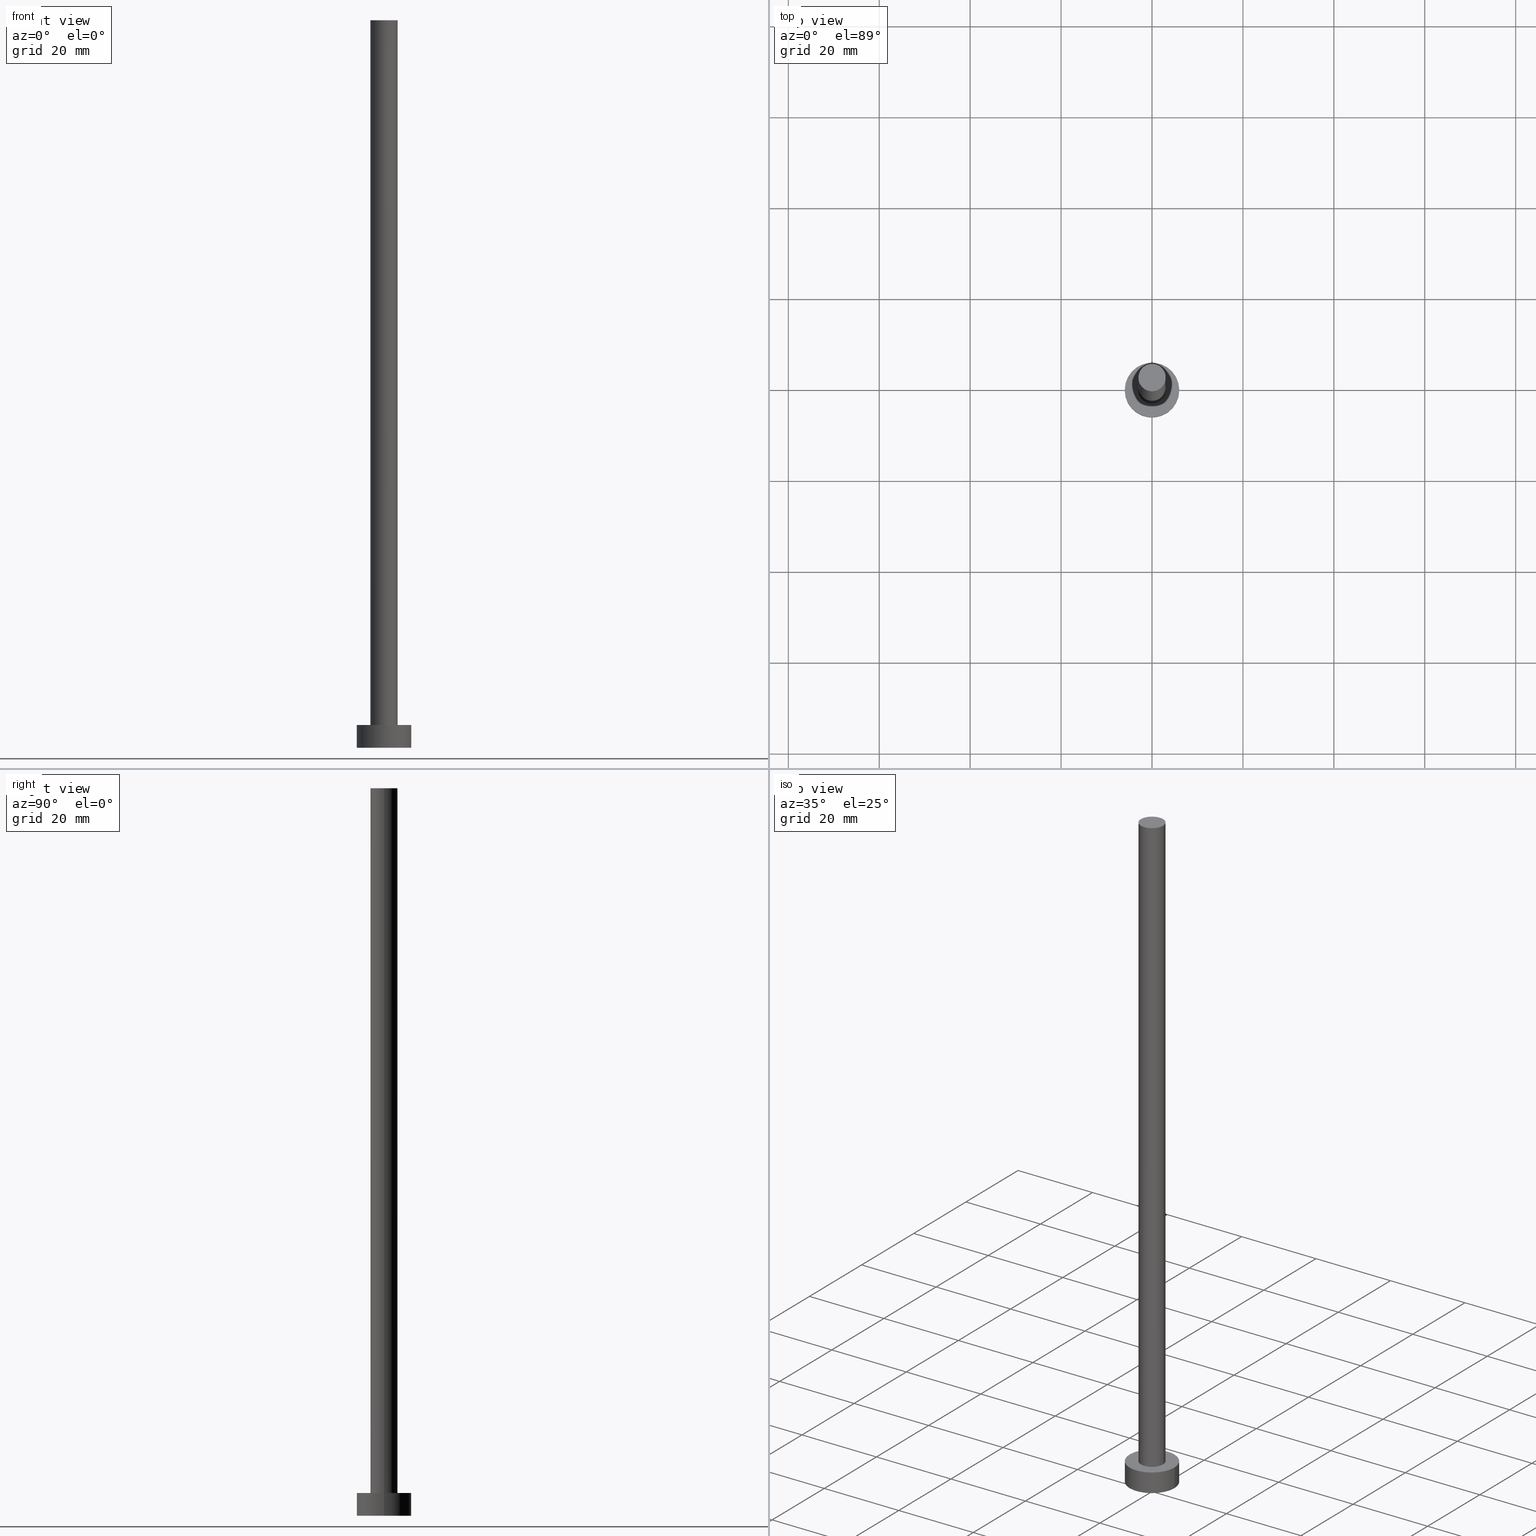
[diagram: canonical four-view strip — front | top / right | iso, engineering-drawing reading convention]
A machine part, canonical four-view strip (front | top / right | iso — engineering-drawing reading convention). The complete STEP part file that produces these views, byte-faithful:
ISO-10303-21;
HEADER;
FILE_DESCRIPTION (( 'STEP AP203' ),
    '1' );
FILE_NAME ('ced7.STEP',
    '2023-02-13T15:22:30',
    ( '' ),
    ( '' ),
    'SwSTEP 2.0',
    'SolidWorks 2019',
    '' );
FILE_SCHEMA (( 'CONFIG_CONTROL_DESIGN' ));
ENDSEC;

DATA;
#1 = ORIENTED_EDGE ( 'NONE', *, *, #205, .F. ) ;
#2 = EDGE_LOOP ( 'NONE', ( #146, #197, #84, #180 ) ) ;
#3 = AXIS2_PLACEMENT_3D ( 'NONE', #59, #112, #141 ) ;
#4 = PRODUCT_DEFINITION_SHAPE ( 'NONE', 'NONE',  #41 ) ;
#5 = FACE_OUTER_BOUND ( 'NONE', #165, .T. ) ;
#6 = DIRECTION ( 'NONE',  ( 0.000000000000000000, 0.000000000000000000, 1.000000000000000000 ) ) ;
#7 = APPLICATION_PROTOCOL_DEFINITION ( 'international standard', 'config_control_design', 1994, #220 ) ;
#8 = ADVANCED_FACE ( 'NONE', ( #27 ), #229, .F. ) ;
#9 = CARTESIAN_POINT ( 'NONE',  ( 3.000000000000000444, 3.673940397442060361E-16, 160.0000000000000000 ) ) ;
#10 = CARTESIAN_POINT ( 'NONE',  ( -3.000000000000000444, 0.000000000000000000, 160.0000000000000000 ) ) ;
#11 = DIRECTION ( 'NONE',  ( -1.000000000000000000, 0.000000000000000000, 0.000000000000000000 ) ) ;
#12 = DIRECTION ( 'NONE',  ( 1.000000000000000000, 0.000000000000000000, 0.000000000000000000 ) ) ;
#13 = ORIENTED_EDGE ( 'NONE', *, *, #247, .T. ) ;
#14 = VECTOR ( 'NONE', #98, 1000.000000000000000 ) ;
#15 = ORIENTED_EDGE ( 'NONE', *, *, #138, .F. ) ;
#16 = CALENDAR_DATE ( 2023, 13, 2 ) ;
#17 = EDGE_LOOP ( 'NONE', ( #1, #62, #38, #177 ) ) ;
#18 = APPROVAL_PERSON_ORGANIZATION ( #86, #118, #239 ) ;
#19 = EDGE_CURVE ( 'NONE', #255, #88, #233, .T. ) ;
#20 = APPROVAL_ROLE ( '' ) ;
#21 = APPROVAL_DATE_TIME ( #202, #182 ) ;
#22 = VERTEX_POINT ( 'NONE', #213 ) ;
#23 = APPROVAL_DATE_TIME ( #69, #118 ) ;
#24 = AXIS2_PLACEMENT_3D ( 'NONE', #175, #179, #113 ) ;
#25 = APPROVAL_PERSON_ORGANIZATION ( #246, #182, #150 ) ;
#26 = DIRECTION ( 'NONE',  ( 0.000000000000000000, 0.000000000000000000, 1.000000000000000000 ) ) ;
#27 = FACE_OUTER_BOUND ( 'NONE', #147, .T. ) ;
#28 = CYLINDRICAL_SURFACE ( 'NONE', #85, 3.000000000000000444 ) ;
#29 =( NAMED_UNIT ( * ) PLANE_ANGLE_UNIT ( ) SI_UNIT ( $, .RADIAN. ) );
#30 = DIRECTION ( 'NONE',  ( 1.000000000000000000, 0.000000000000000000, 0.000000000000000000 ) ) ;
#31 = VECTOR ( 'NONE', #95, 1000.000000000000000 ) ;
#32 = DIRECTION ( 'NONE',  ( 0.000000000000000000, 0.000000000000000000, 1.000000000000000000 ) ) ;
#33 = FACE_OUTER_BOUND ( 'NONE', #17, .T. ) ;
#34 = CARTESIAN_POINT ( 'NONE',  ( -3.000000000000000444, 0.000000000000000000, 160.0000000000000000 ) ) ;
#35 = CC_DESIGN_PERSON_AND_ORGANIZATION_ASSIGNMENT ( #196, #108, ( #47 ) ) ;
#36 = CARTESIAN_POINT ( 'NONE',  ( 3.000000000000000444, 3.673940397442060361E-16, 5.000000000000000000 ) ) ;
#37 = PERSON_AND_ORGANIZATION_ROLE ( 'creator' ) ;
#38 = ORIENTED_EDGE ( 'NONE', *, *, #92, .T. ) ;
#39 = COORDINATED_UNIVERSAL_TIME_OFFSET ( 1, 0, .AHEAD. ) ;
#40 = ORIENTED_EDGE ( 'NONE', *, *, #110, .F. ) ;
#41 = PRODUCT_DEFINITION ( 'NEZN�M�', '', #47, #70 ) ;
#42 = DATE_TIME_ROLE ( 'creation_date' ) ;
#43 = VERTEX_POINT ( 'NONE', #140 ) ;
#44 = PRODUCT_RELATED_PRODUCT_CATEGORY ( 'detail', '', ( #133 ) ) ;
#45 = LOCAL_TIME ( 16, 22, 30.00000000000000000, #39 ) ;
#46 = EDGE_CURVE ( 'NONE', #22, #234, #211, .T. ) ;
#47 = PRODUCT_DEFINITION_FORMATION_WITH_SPECIFIED_SOURCE ( 'LIBOVOLN�', '', #133, .NOT_KNOWN. ) ;
#48 = CYLINDRICAL_SURFACE ( 'NONE', #178, 3.000000000000000444 ) ;
#49 = AXIS2_PLACEMENT_3D ( 'NONE', #119, #253, #12 ) ;
#50 =( GEOMETRIC_REPRESENTATION_CONTEXT ( 3 ) GLOBAL_UNCERTAINTY_ASSIGNED_CONTEXT ( ( #242 ) ) GLOBAL_UNIT_ASSIGNED_CONTEXT ( ( #117, #29, #54 ) ) REPRESENTATION_CONTEXT ( 'NONE', 'WORKASPACE' ) );
#51 = DIRECTION ( 'NONE',  ( 0.000000000000000000, 0.000000000000000000, 1.000000000000000000 ) ) ;
#52 = CARTESIAN_POINT ( 'NONE',  ( 0.000000000000000000, 0.000000000000000000, 0.000000000000000000 ) ) ;
#53 = DIRECTION ( 'NONE',  ( 0.000000000000000000, 0.000000000000000000, 1.000000000000000000 ) ) ;
#54 =( NAMED_UNIT ( * ) SI_UNIT ( $, .STERADIAN. ) SOLID_ANGLE_UNIT ( ) );
#55 = DIRECTION ( 'NONE',  ( 1.000000000000000000, 0.000000000000000000, 0.000000000000000000 ) ) ;
#56 = APPLICATION_PROTOCOL_DEFINITION ( 'international standard', 'config_control_design', 1994, #149 ) ;
#57 = CC_DESIGN_PERSON_AND_ORGANIZATION_ASSIGNMENT ( #217, #37, ( #47 ) ) ;
#58 = DIRECTION ( 'NONE',  ( 1.000000000000000000, 0.000000000000000000, 0.000000000000000000 ) ) ;
#59 = CARTESIAN_POINT ( 'NONE',  ( 0.000000000000000000, 0.000000000000000000, 5.000000000000000000 ) ) ;
#60 = PERSON_AND_ORGANIZATION ( #115, #238 ) ;
#61 = EDGE_LOOP ( 'NONE', ( #161, #13, #66, #40 ) ) ;
#62 = ORIENTED_EDGE ( 'NONE', *, *, #19, .T. ) ;
#63 = CIRCLE ( 'NONE', #206, 6.000000000000000888 ) ;
#64 = VERTEX_POINT ( 'NONE', #10 ) ;
#65 = SECURITY_CLASSIFICATION_LEVEL ( 'unclassified' ) ;
#66 = ORIENTED_EDGE ( 'NONE', *, *, #71, .T. ) ;
#67 = AXIS2_PLACEMENT_3D ( 'NONE', #131, #51, #132 ) ;
#68 = CALENDAR_DATE ( 2023, 13, 2 ) ;
#69 = DATE_AND_TIME ( #68, #240 ) ;
#70 = DESIGN_CONTEXT ( 'detailed design', #220, 'design' ) ;
#71 = EDGE_CURVE ( 'NONE', #87, #43, #89, .T. ) ;
#72 = CIRCLE ( 'NONE', #244, 6.000000000000000888 ) ;
#73 = APPROVAL ( #218, 'NEUR�EN�' ) ;
#74 = DIRECTION ( 'NONE',  ( 1.000000000000000000, 0.000000000000000000, 0.000000000000000000 ) ) ;
#75 = CLOSED_SHELL ( 'NONE', ( #201, #187, #109, #169, #8, #163, #230 ) ) ;
#76 = APPROVAL_STATUS ( 'not_yet_approved' ) ;
#77 = DIRECTION ( 'NONE',  ( -0.000000000000000000, -0.000000000000000000, -1.000000000000000000 ) ) ;
#78 = LINE ( 'NONE', #34, #122 ) ;
#79 = CARTESIAN_POINT ( 'NONE',  ( 0.000000000000000000, 0.000000000000000000, 160.0000000000000000 ) ) ;
#80 = CARTESIAN_POINT ( 'NONE',  ( 0.000000000000000000, 0.000000000000000000, 0.000000000000000000 ) ) ;
#81 = DIRECTION ( 'NONE',  ( 1.000000000000000000, 0.000000000000000000, 0.000000000000000000 ) ) ;
#82 = PERSON_AND_ORGANIZATION_ROLE ( 'classification_officer' ) ;
#83 = PERSON_AND_ORGANIZATION ( #115, #238 ) ;
#84 = ORIENTED_EDGE ( 'NONE', *, *, #110, .T. ) ;
#85 = AXIS2_PLACEMENT_3D ( 'NONE', #153, #208, #11 ) ;
#86 = PERSON_AND_ORGANIZATION ( #115, #238 ) ;
#87 = VERTEX_POINT ( 'NONE', #36 ) ;
#88 = VERTEX_POINT ( 'NONE', #226 ) ;
#89 = CIRCLE ( 'NONE', #154, 3.000000000000000444 ) ;
#90 = SHAPE_DEFINITION_REPRESENTATION ( #4, #228 ) ;
#91 = CC_DESIGN_PERSON_AND_ORGANIZATION_ASSIGNMENT ( #60, #102, ( #41 ) ) ;
#92 = EDGE_CURVE ( 'NONE', #88, #234, #111, .T. ) ;
#93 = CARTESIAN_POINT ( 'NONE',  ( 0.000000000000000000, 0.000000000000000000, 0.000000000000000000 ) ) ;
#94 = CARTESIAN_POINT ( 'NONE',  ( 3.000000000000000444, 3.673940397442060361E-16, 160.0000000000000000 ) ) ;
#95 = DIRECTION ( 'NONE',  ( -0.000000000000000000, -0.000000000000000000, -1.000000000000000000 ) ) ;
#96 = PERSON_AND_ORGANIZATION ( #115, #238 ) ;
#97 = DIRECTION ( 'NONE',  ( -0.000000000000000000, -0.000000000000000000, -1.000000000000000000 ) ) ;
#98 = DIRECTION ( 'NONE',  ( -0.000000000000000000, -0.000000000000000000, -1.000000000000000000 ) ) ;
#99 = CARTESIAN_POINT ( 'NONE',  ( 0.000000000000000000, 0.000000000000000000, 5.000000000000000000 ) ) ;
#100 = CARTESIAN_POINT ( 'NONE',  ( 0.000000000000000000, 0.000000000000000000, 160.0000000000000000 ) ) ;
#101 = AXIS2_PLACEMENT_3D ( 'NONE', #79, #26, #74 ) ;
#102 = PERSON_AND_ORGANIZATION_ROLE ( 'creator' ) ;
#103 = CARTESIAN_POINT ( 'NONE',  ( 6.000000000000000888, 7.347880794884120722E-16, 5.000000000000000000 ) ) ;
#104 = ORIENTED_EDGE ( 'NONE', *, *, #138, .T. ) ;
#105 = DATE_AND_TIME ( #16, #148 ) ;
#106 = EDGE_LOOP ( 'NONE', ( #124, #142 ) ) ;
#107 = LOCAL_TIME ( 16, 22, 30.00000000000000000, #129 ) ;
#108 = PERSON_AND_ORGANIZATION_ROLE ( 'design_supplier' ) ;
#109 = ADVANCED_FACE ( 'NONE', ( #173 ), #192, .T. ) ;
#110 = EDGE_CURVE ( 'NONE', #64, #43, #78, .T. ) ;
#111 = CIRCLE ( 'NONE', #214, 6.000000000000000888 ) ;
#112 = DIRECTION ( 'NONE',  ( -0.000000000000000000, -0.000000000000000000, -1.000000000000000000 ) ) ;
#113 = DIRECTION ( 'NONE',  ( -1.000000000000000000, 0.000000000000000000, 0.000000000000000000 ) ) ;
#114 = FACE_OUTER_BOUND ( 'NONE', #106, .T. ) ;
#115 = PERSON ( 'NEUR�EN�', 'NEUR�EN�', 'NEUR�EN�', ('NEUR�EN�'), ('NEUR�EN�'), ('NEUR�EN�') ) ;
#116 = CARTESIAN_POINT ( 'NONE',  ( -6.000000000000000888, 0.000000000000000000, 0.000000000000000000 ) ) ;
#117 =( LENGTH_UNIT ( ) NAMED_UNIT ( * ) SI_UNIT ( .MILLI., .METRE. ) );
#118 = APPROVAL ( #164, 'NEUR�EN�' ) ;
#119 = CARTESIAN_POINT ( 'NONE',  ( 0.000000000000000000, 0.000000000000000000, 5.000000000000000000 ) ) ;
#120 = DIRECTION ( 'NONE',  ( 1.000000000000000000, 0.000000000000000000, -0.000000000000000000 ) ) ;
#121 = EDGE_CURVE ( 'NONE', #43, #87, #157, .T. ) ;
#122 = VECTOR ( 'NONE', #248, 1000.000000000000000 ) ;
#123 = CALENDAR_DATE ( 2023, 13, 2 ) ;
#124 = ORIENTED_EDGE ( 'NONE', *, *, #137, .T. ) ;
#125 = CALENDAR_DATE ( 2023, 13, 2 ) ;
#126 = ORIENTED_EDGE ( 'NONE', *, *, #92, .F. ) ;
#127 = CC_DESIGN_APPROVAL ( #182, ( #41 ) ) ;
#128 = COORDINATED_UNIVERSAL_TIME_OFFSET ( 1, 0, .AHEAD. ) ;
#129 = COORDINATED_UNIVERSAL_TIME_OFFSET ( 1, 0, .AHEAD. ) ;
#130 = MANIFOLD_SOLID_BREP ( 'P�idat vysunut�m3', #75 ) ;
#131 = CARTESIAN_POINT ( 'NONE',  ( 0.000000000000000000, 0.000000000000000000, 5.000000000000000000 ) ) ;
#132 = DIRECTION ( 'NONE',  ( 1.000000000000000000, 0.000000000000000000, 0.000000000000000000 ) ) ;
#133 = PRODUCT ( 'ced7', 'ced7', '', ( #190 ) ) ;
#134 = CC_DESIGN_PERSON_AND_ORGANIZATION_ASSIGNMENT ( #83, #82, ( #250 ) ) ;
#135 = PERSON_AND_ORGANIZATION_ROLE ( 'design_owner' ) ;
#136 = DIRECTION ( 'NONE',  ( -1.000000000000000000, 0.000000000000000000, 0.000000000000000000 ) ) ;
#137 = EDGE_CURVE ( 'NONE', #64, #162, #241, .T. ) ;
#138 = EDGE_CURVE ( 'NONE', #234, #88, #63, .T. ) ;
#139 = FACE_BOUND ( 'NONE', #219, .T. ) ;
#140 = CARTESIAN_POINT ( 'NONE',  ( -3.000000000000000444, 0.000000000000000000, 5.000000000000000000 ) ) ;
#141 = DIRECTION ( 'NONE',  ( -1.000000000000000000, 0.000000000000000000, 0.000000000000000000 ) ) ;
#142 = ORIENTED_EDGE ( 'NONE', *, *, #186, .T. ) ;
#143 = COORDINATED_UNIVERSAL_TIME_OFFSET ( 1, 0, .AHEAD. ) ;
#144 = ORIENTED_EDGE ( 'NONE', *, *, #19, .F. ) ;
#145 = CIRCLE ( 'NONE', #67, 6.000000000000000888 ) ;
#146 = ORIENTED_EDGE ( 'NONE', *, *, #247, .F. ) ;
#147 = EDGE_LOOP ( 'NONE', ( #15, #126 ) ) ;
#148 = LOCAL_TIME ( 16, 22, 30.00000000000000000, #183 ) ;
#149 = APPLICATION_CONTEXT ( 'configuration controlled 3d designs of mechanical parts and assemblies' ) ;
#150 = APPROVAL_ROLE ( '' ) ;
#151 = AXIS2_PLACEMENT_3D ( 'NONE', #156, #193, #120 ) ;
#152 = APPROVAL_PERSON_ORGANIZATION ( #195, #73, #20 ) ;
#153 = CARTESIAN_POINT ( 'NONE',  ( 0.000000000000000000, 0.000000000000000000, 160.0000000000000000 ) ) ;
#154 = AXIS2_PLACEMENT_3D ( 'NONE', #231, #194, #30 ) ;
#155 = CC_DESIGN_APPROVAL ( #73, ( #47 ) ) ;
#156 = CARTESIAN_POINT ( 'NONE',  ( 0.000000000000000000, 0.000000000000000000, 0.000000000000000000 ) ) ;
#157 = CIRCLE ( 'NONE', #49, 3.000000000000000444 ) ;
#158 = DIRECTION ( 'NONE',  ( 0.000000000000000000, 0.000000000000000000, 1.000000000000000000 ) ) ;
#159 = DATE_AND_TIME ( #198, #45 ) ;
#160 = DIRECTION ( 'NONE',  ( 1.000000000000000000, 0.000000000000000000, 0.000000000000000000 ) ) ;
#161 = ORIENTED_EDGE ( 'NONE', *, *, #186, .F. ) ;
#162 = VERTEX_POINT ( 'NONE', #94 ) ;
#163 = ADVANCED_FACE ( 'NONE', ( #227 ), #28, .T. ) ;
#164 = APPROVAL_STATUS ( 'not_yet_approved' ) ;
#165 = EDGE_LOOP ( 'NONE', ( #185, #184 ) ) ;
#166 = AXIS2_PLACEMENT_3D ( 'NONE', #93, #209, #225 ) ;
#167 = CC_DESIGN_APPROVAL ( #118, ( #250 ) ) ;
#168 = EDGE_CURVE ( 'NONE', #22, #255, #72, .T. ) ;
#169 = ADVANCED_FACE ( 'NONE', ( #139, #5 ), #210, .T. ) ;
#170 = CARTESIAN_POINT ( 'NONE',  ( 0.000000000000000000, 0.000000000000000000, 5.000000000000000000 ) ) ;
#171 = CC_DESIGN_SECURITY_CLASSIFICATION ( #250, ( #47 ) ) ;
#172 = CARTESIAN_POINT ( 'NONE',  ( 0.000000000000000000, 0.000000000000000000, 160.0000000000000000 ) ) ;
#173 = FACE_OUTER_BOUND ( 'NONE', #232, .T. ) ;
#174 = CARTESIAN_POINT ( 'NONE',  ( 6.000000000000000888, 7.347880794884120722E-16, 5.000000000000000000 ) ) ;
#175 = CARTESIAN_POINT ( 'NONE',  ( 0.000000000000000000, 0.000000000000000000, 5.000000000000000000 ) ) ;
#176 = DIRECTION ( 'NONE',  ( 0.000000000000000000, 0.000000000000000000, 1.000000000000000000 ) ) ;
#177 = ORIENTED_EDGE ( 'NONE', *, *, #46, .F. ) ;
#178 = AXIS2_PLACEMENT_3D ( 'NONE', #188, #77, #136 ) ;
#179 = DIRECTION ( 'NONE',  ( -0.000000000000000000, -0.000000000000000000, -1.000000000000000000 ) ) ;
#180 = ORIENTED_EDGE ( 'NONE', *, *, #121, .T. ) ;
#181 = APPROVAL_DATE_TIME ( #254, #73 ) ;
#182 = APPROVAL ( #76, 'NEUR�EN�' ) ;
#183 = COORDINATED_UNIVERSAL_TIME_OFFSET ( 1, 0, .AHEAD. ) ;
#184 = ORIENTED_EDGE ( 'NONE', *, *, #205, .T. ) ;
#185 = ORIENTED_EDGE ( 'NONE', *, *, #168, .T. ) ;
#186 = EDGE_CURVE ( 'NONE', #162, #64, #252, .T. ) ;
#187 = ADVANCED_FACE ( 'NONE', ( #33 ), #216, .T. ) ;
#188 = CARTESIAN_POINT ( 'NONE',  ( 0.000000000000000000, 0.000000000000000000, 160.0000000000000000 ) ) ;
#189 = PLANE ( 'NONE',  #207 ) ;
#190 = MECHANICAL_CONTEXT ( 'NONE', #149, 'mechanical' ) ;
#191 = LINE ( 'NONE', #9, #14 ) ;
#192 = CYLINDRICAL_SURFACE ( 'NONE', #24, 6.000000000000000888 ) ;
#193 = DIRECTION ( 'NONE',  ( 0.000000000000000000, 0.000000000000000000, 1.000000000000000000 ) ) ;
#194 = DIRECTION ( 'NONE',  ( 0.000000000000000000, 0.000000000000000000, 1.000000000000000000 ) ) ;
#195 = PERSON_AND_ORGANIZATION ( #115, #238 ) ;
#196 = PERSON_AND_ORGANIZATION ( #115, #238 ) ;
#197 = ORIENTED_EDGE ( 'NONE', *, *, #137, .F. ) ;
#198 = CALENDAR_DATE ( 2023, 13, 2 ) ;
#199 = ORIENTED_EDGE ( 'NONE', *, *, #46, .T. ) ;
#200 = AXIS2_PLACEMENT_3D ( 'NONE', #170, #176, #243 ) ;
#201 = ADVANCED_FACE ( 'NONE', ( #224 ), #48, .T. ) ;
#202 = DATE_AND_TIME ( #125, #107 ) ;
#203 = ORIENTED_EDGE ( 'NONE', *, *, #121, .F. ) ;
#204 = AXIS2_PLACEMENT_3D ( 'NONE', #100, #251, #81 ) ;
#205 = EDGE_CURVE ( 'NONE', #255, #22, #145, .T. ) ;
#206 = AXIS2_PLACEMENT_3D ( 'NONE', #80, #158, #160 ) ;
#207 = AXIS2_PLACEMENT_3D ( 'NONE', #172, #6, #212 ) ;
#208 = DIRECTION ( 'NONE',  ( -0.000000000000000000, -0.000000000000000000, -1.000000000000000000 ) ) ;
#209 = DIRECTION ( 'NONE',  ( 0.000000000000000000, 0.000000000000000000, 1.000000000000000000 ) ) ;
#210 = PLANE ( 'NONE',  #200 ) ;
#211 = LINE ( 'NONE', #215, #237 ) ;
#212 = DIRECTION ( 'NONE',  ( 1.000000000000000000, 0.000000000000000000, -0.000000000000000000 ) ) ;
#213 = CARTESIAN_POINT ( 'NONE',  ( -6.000000000000000888, 0.000000000000000000, 5.000000000000000000 ) ) ;
#214 = AXIS2_PLACEMENT_3D ( 'NONE', #52, #32, #58 ) ;
#215 = CARTESIAN_POINT ( 'NONE',  ( -6.000000000000000888, 0.000000000000000000, 5.000000000000000000 ) ) ;
#216 = CYLINDRICAL_SURFACE ( 'NONE', #3, 6.000000000000000888 ) ;
#217 = PERSON_AND_ORGANIZATION ( #115, #238 ) ;
#218 = APPROVAL_STATUS ( 'not_yet_approved' ) ;
#219 = EDGE_LOOP ( 'NONE', ( #203, #221 ) ) ;
#220 = APPLICATION_CONTEXT ( 'configuration controlled 3d designs of mechanical parts and assemblies' ) ;
#221 = ORIENTED_EDGE ( 'NONE', *, *, #71, .F. ) ;
#222 = LOCAL_TIME ( 16, 22, 30.00000000000000000, #143 ) ;
#223 = CC_DESIGN_PERSON_AND_ORGANIZATION_ASSIGNMENT ( #96, #135, ( #133 ) ) ;
#224 = FACE_OUTER_BOUND ( 'NONE', #61, .T. ) ;
#225 = DIRECTION ( 'NONE',  ( 1.000000000000000000, 0.000000000000000000, 0.000000000000000000 ) ) ;
#226 = CARTESIAN_POINT ( 'NONE',  ( 6.000000000000000888, 7.347880794884120722E-16, 0.000000000000000000 ) ) ;
#227 = FACE_OUTER_BOUND ( 'NONE', #2, .T. ) ;
#228 = ADVANCED_BREP_SHAPE_REPRESENTATION ( 'ced7', ( #130, #166 ), #50 ) ;
#229 = PLANE ( 'NONE',  #151 ) ;
#230 = ADVANCED_FACE ( 'NONE', ( #114 ), #189, .T. ) ;
#231 = CARTESIAN_POINT ( 'NONE',  ( 0.000000000000000000, 0.000000000000000000, 5.000000000000000000 ) ) ;
#232 = EDGE_LOOP ( 'NONE', ( #144, #236, #199, #104 ) ) ;
#233 = LINE ( 'NONE', #103, #31 ) ;
#234 = VERTEX_POINT ( 'NONE', #116 ) ;
#235 = DATE_TIME_ROLE ( 'classification_date' ) ;
#236 = ORIENTED_EDGE ( 'NONE', *, *, #168, .F. ) ;
#237 = VECTOR ( 'NONE', #97, 1000.000000000000000 ) ;
#238 = ORGANIZATION ( 'NEUR�EN�', 'NEUR�EN�', '' ) ;
#239 = APPROVAL_ROLE ( '' ) ;
#240 = LOCAL_TIME ( 16, 22, 30.00000000000000000, #128 ) ;
#241 = CIRCLE ( 'NONE', #204, 3.000000000000000444 ) ;
#242 = UNCERTAINTY_MEASURE_WITH_UNIT (LENGTH_MEASURE( 1.000000000000000082E-05 ), #117, 'distance_accuracy_value', 'NONE');
#243 = DIRECTION ( 'NONE',  ( 1.000000000000000000, 0.000000000000000000, -0.000000000000000000 ) ) ;
#244 = AXIS2_PLACEMENT_3D ( 'NONE', #99, #53, #55 ) ;
#245 = CC_DESIGN_DATE_AND_TIME_ASSIGNMENT ( #105, #235, ( #250 ) ) ;
#246 = PERSON_AND_ORGANIZATION ( #115, #238 ) ;
#247 = EDGE_CURVE ( 'NONE', #162, #87, #191, .T. ) ;
#248 = DIRECTION ( 'NONE',  ( -0.000000000000000000, -0.000000000000000000, -1.000000000000000000 ) ) ;
#249 = CC_DESIGN_DATE_AND_TIME_ASSIGNMENT ( #159, #42, ( #41 ) ) ;
#250 = SECURITY_CLASSIFICATION ( '', '', #65 ) ;
#251 = DIRECTION ( 'NONE',  ( 0.000000000000000000, 0.000000000000000000, 1.000000000000000000 ) ) ;
#252 = CIRCLE ( 'NONE', #101, 3.000000000000000444 ) ;
#253 = DIRECTION ( 'NONE',  ( 0.000000000000000000, 0.000000000000000000, 1.000000000000000000 ) ) ;
#254 = DATE_AND_TIME ( #123, #222 ) ;
#255 = VERTEX_POINT ( 'NONE', #174 ) ;
ENDSEC;
END-ISO-10303-21;
